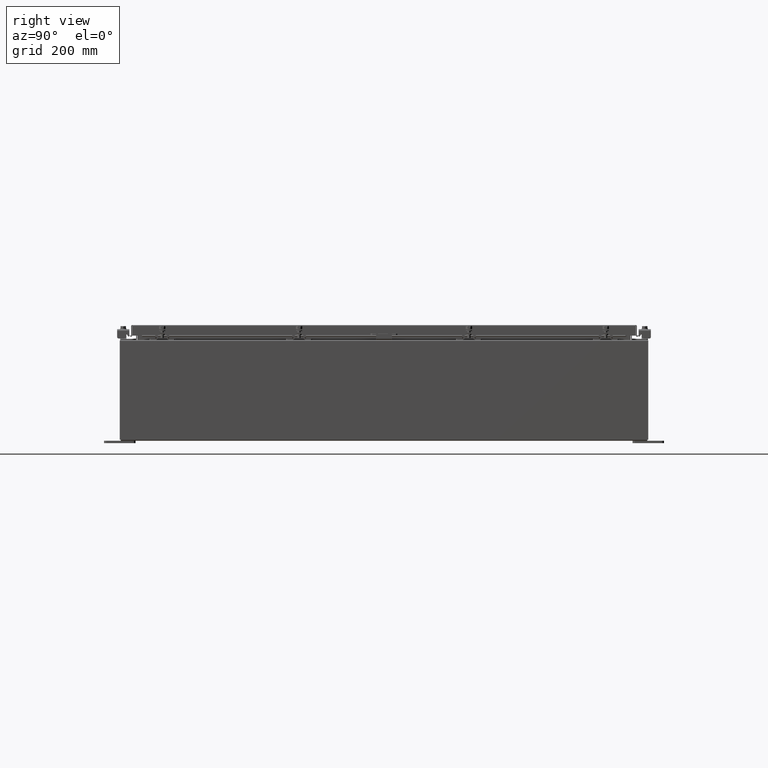
[diagram: clean part render]
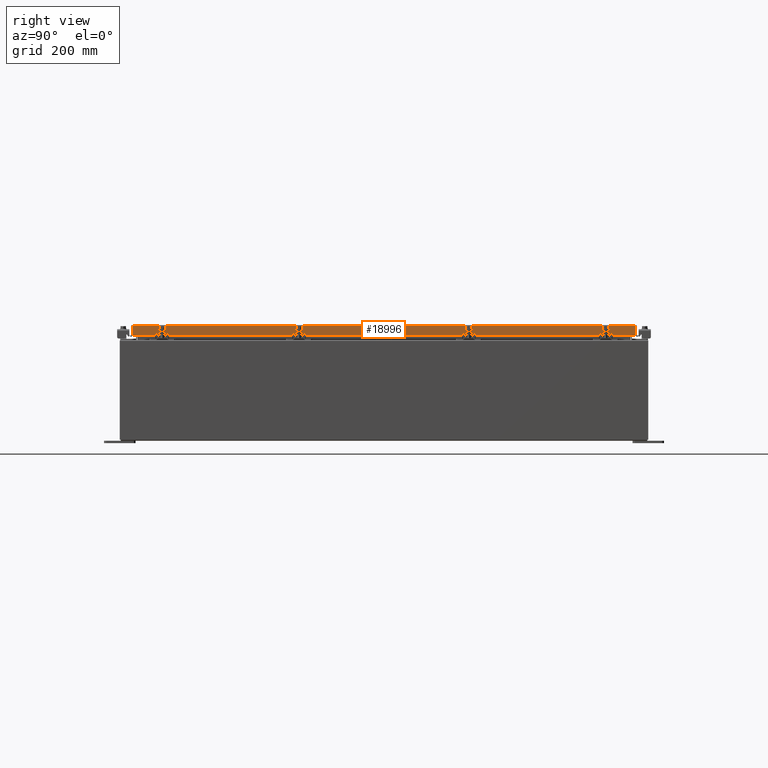
[diagram: same view with one face highlighted and labeled with its STEP entity id]
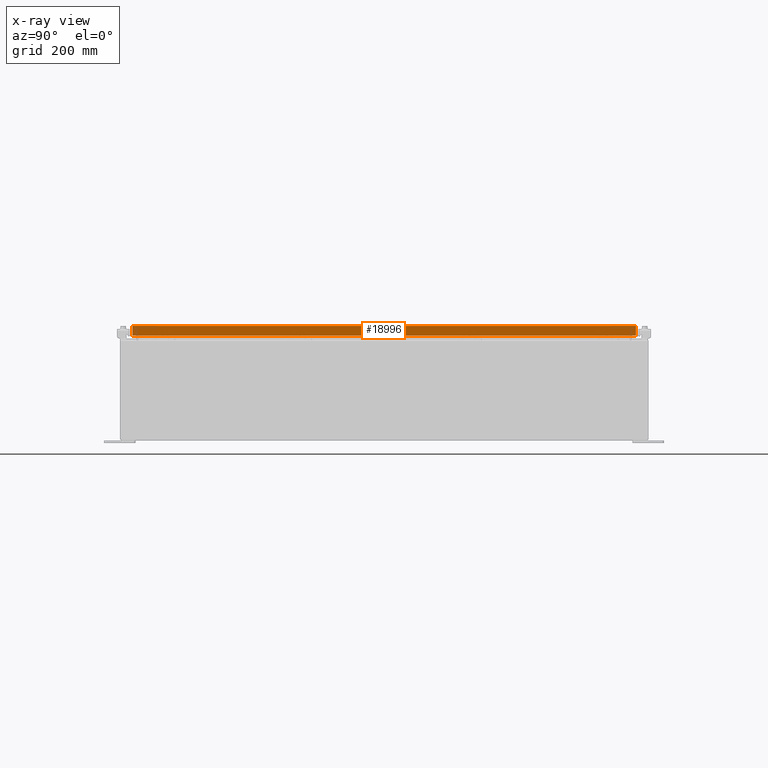
[diagram: x-ray of the same camera — body ghosted, the highlighted face saturated]
A machine part, right view. The second image highlights one B-rep face of the part: STEP entity #18996.
The next image is the same camera in x-ray: the body ghosted, the highlighted face saturated — about 0% of this face is hidden behind the body in this view.
In plain terms, the highlighted planar face has unit normal (1, 0, 0).
Its self-contained STEP definition (entity closure, byte-faithful):
#747 = AXIS2_PLACEMENT_3D ( 'NONE', #30437, #45851, #22964 ) ;
#1542 = DIRECTION ( 'NONE',  ( 0.0000000000000000000, -1.000000000000000000, 0.0000000000000000000 ) ) ;
#2330 = CARTESIAN_POINT ( 'NONE',  ( 17.07799999999999900, 19.25515786437627200, -0.8500000000000018700 ) ) ;
#4690 = VECTOR ( 'NONE', #32734, 39.37007874015748100 ) ;
#5062 = CARTESIAN_POINT ( 'NONE',  ( 17.07799999999999900, 0.0000000000000000000, -0.08770000000000007000 ) ) ;
#5808 = CARTESIAN_POINT ( 'NONE',  ( 17.07800000000000300, 20.00515786437627200, -0.8499999999999996400 ) ) ;
#6084 = CARTESIAN_POINT ( 'NONE',  ( 17.07799999999999900, 20.00515786437626900, 1.880969331248393600E-013 ) ) ;
#7330 = ORIENTED_EDGE ( 'NONE', *, *, #48381, .T. ) ;
#8443 = EDGE_LOOP ( 'NONE', ( #42615, #38396, #12568, #44382, #39634, #7330 ) ) ;
#8792 = EDGE_CURVE ( 'NONE', #47795, #27294, #47315, .T. ) ;
#8917 = CARTESIAN_POINT ( 'NONE',  ( 17.07799999999999900, -20.00515786437627200, -0.07469999999999978000 ) ) ;
#12060 = CARTESIAN_POINT ( 'NONE',  ( 17.07800000000000300, -20.09400000000000100, -0.8499999999999996400 ) ) ;
#12568 = ORIENTED_EDGE ( 'NONE', *, *, #32448, .F. ) ;
#14043 = EDGE_CURVE ( 'NONE', #39217, #28025, #36337, .T. ) ;
#16753 = CARTESIAN_POINT ( 'NONE',  ( 17.07800000000000300, -20.09400000000000100, -0.8499999999999996400 ) ) ;
#17237 = CARTESIAN_POINT ( 'NONE',  ( 17.07799999999999900, -20.00515786437627200, -0.08770000000000007000 ) ) ;
#18051 = VERTEX_POINT ( 'NONE', #38700 ) ;
#18206 = LINE ( 'NONE', #5062, #38561 ) ;
#18831 = FACE_OUTER_BOUND ( 'NONE', #8443, .T. ) ;
#18996 = ADVANCED_FACE ( 'NONE', ( #18831 ), #19125, .T. ) ;
#19125 = PLANE ( 'NONE',  #747 ) ;
#22964 = DIRECTION ( 'NONE',  ( 2.818880942772360100E-015, 0.0000000000000000000, -1.000000000000000000 ) ) ;
#23652 = VECTOR ( 'NONE', #38466, 39.37007874015748100 ) ;
#23724 = DIRECTION ( 'NONE',  ( -2.818880942772360100E-015, -6.982962677686265900E-015, 1.000000000000000000 ) ) ;
#24941 = LINE ( 'NONE', #6084, #4690 ) ;
#26148 = VECTOR ( 'NONE', #46431, 39.37007874015748100 ) ;
#27294 = VERTEX_POINT ( 'NONE', #17237 ) ;
#28025 = VERTEX_POINT ( 'NONE', #2330 ) ;
#29817 = CARTESIAN_POINT ( 'NONE',  ( 17.07799999999999900, -19.25515786437626500, -0.8500000000000018700 ) ) ;
#30374 = VECTOR ( 'NONE', #1542, 39.37007874015748100 ) ;
#30437 = CARTESIAN_POINT ( 'NONE',  ( 17.07799999999999900, 0.0000000000000000000, 4.840166239667794100E-014 ) ) ;
#31739 = DIRECTION ( 'NONE',  ( 0.0000000000000000000, -1.000000000000000000, 0.0000000000000000000 ) ) ;
#32448 = EDGE_CURVE ( 'NONE', #28025, #46851, #33827, .T. ) ;
#32734 = DIRECTION ( 'NONE',  ( -2.818880942772360100E-015, -6.982962677686265900E-015, 1.000000000000000000 ) ) ;
#33827 = LINE ( 'NONE', #34603, #23652 ) ;
#34603 = CARTESIAN_POINT ( 'NONE',  ( 17.07799999999999900, 19.25515786437627200, -0.8500000000000018700 ) ) ;
#36337 = LINE ( 'NONE', #12060, #26148 ) ;
#37181 = VECTOR ( 'NONE', #23724, 39.37007874015748100 ) ;
#38036 = EDGE_CURVE ( 'NONE', #46851, #47795, #40578, .T. ) ;
#38396 = ORIENTED_EDGE ( 'NONE', *, *, #38036, .F. ) ;
#38466 = DIRECTION ( 'NONE',  ( 0.0000000000000000000, -1.000000000000000000, 0.0000000000000000000 ) ) ;
#38561 = VECTOR ( 'NONE', #31739, 39.37007874015748100 ) ;
#38700 = CARTESIAN_POINT ( 'NONE',  ( 17.07799999999999900, 20.00515786437626900, -0.08770000000000007000 ) ) ;
#39217 = VERTEX_POINT ( 'NONE', #5808 ) ;
#39634 = ORIENTED_EDGE ( 'NONE', *, *, #46082, .T. ) ;
#40578 = LINE ( 'NONE', #16753, #30374 ) ;
#42615 = ORIENTED_EDGE ( 'NONE', *, *, #8792, .F. ) ;
#43466 = CARTESIAN_POINT ( 'NONE',  ( 17.07800000000000300, -20.00515786437626900, -0.8499999999999996400 ) ) ;
#44382 = ORIENTED_EDGE ( 'NONE', *, *, #14043, .F. ) ;
#45851 = DIRECTION ( 'NONE',  ( 1.000000000000000000, 0.0000000000000000000, 2.818880942772360100E-015 ) ) ;
#46082 = EDGE_CURVE ( 'NONE', #39217, #18051, #24941, .T. ) ;
#46431 = DIRECTION ( 'NONE',  ( 0.0000000000000000000, -1.000000000000000000, 0.0000000000000000000 ) ) ;
#46851 = VERTEX_POINT ( 'NONE', #29817 ) ;
#47315 = LINE ( 'NONE', #8917, #37181 ) ;
#47795 = VERTEX_POINT ( 'NONE', #43466 ) ;
#48381 = EDGE_CURVE ( 'NONE', #18051, #27294, #18206, .T. ) ;